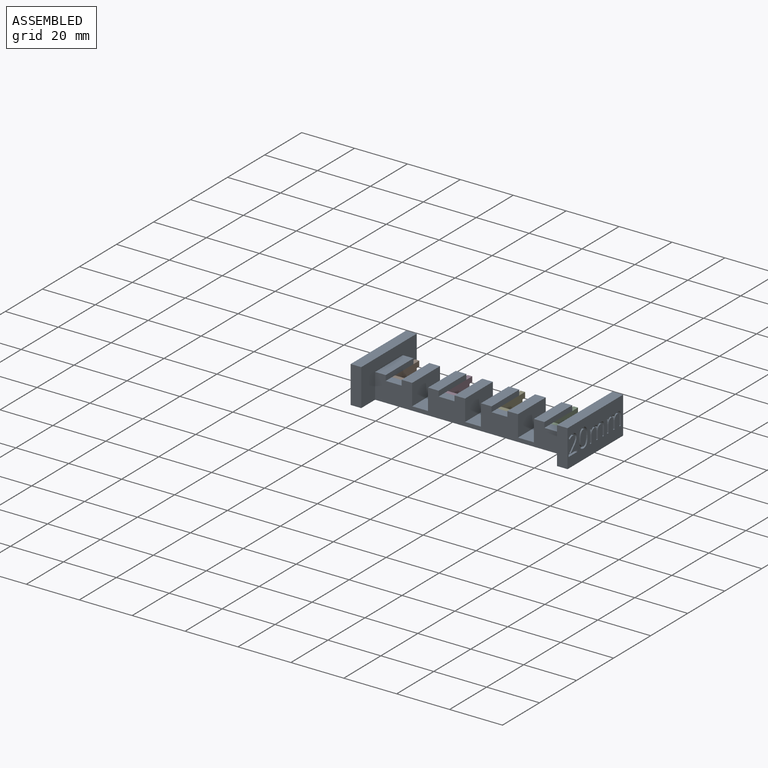
[diagram: assembled view]
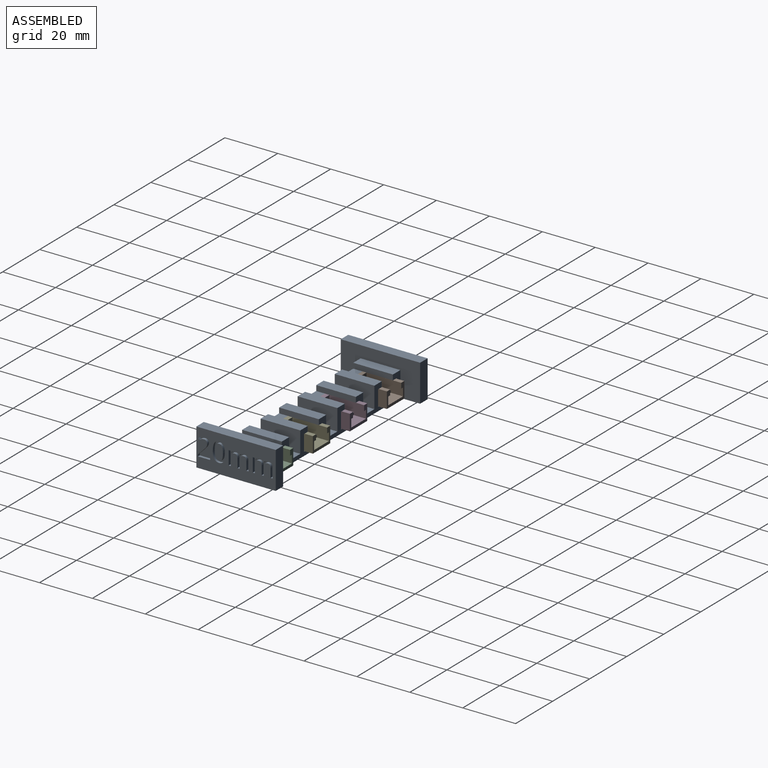
[diagram: assembled view, second angle]
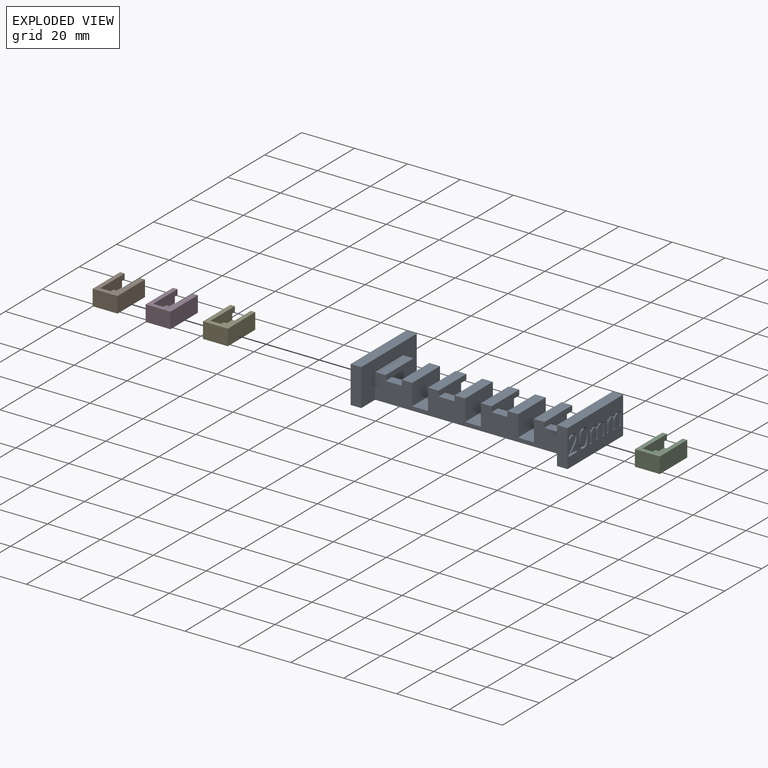
[diagram: exploded view]
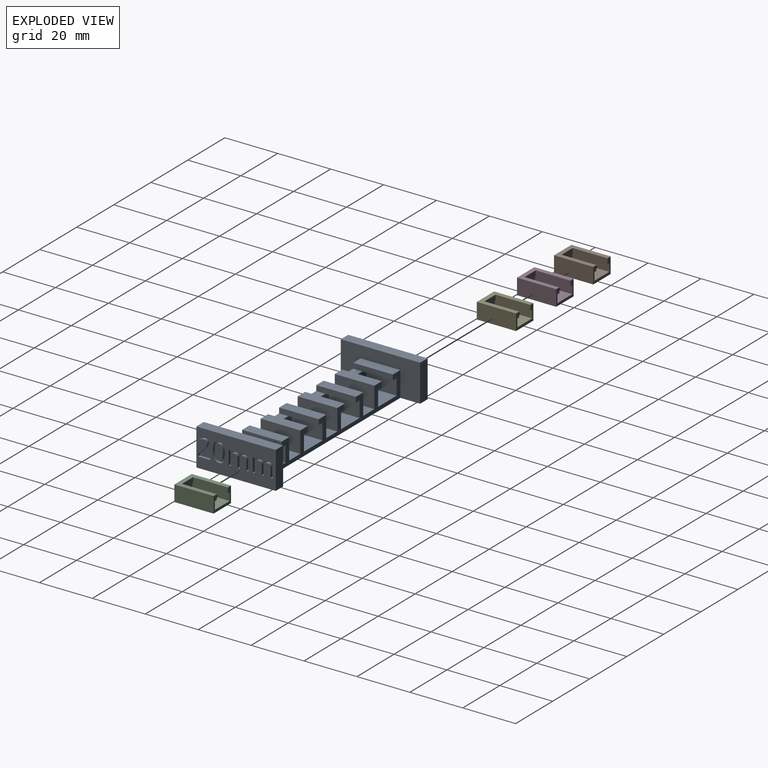
[diagram: exploded view, second angle]
ASSEMBLY  parts=5 mates=2
PART A: 167 faces, bbox 82x30x14 mm
  f0: plane 30x14mm, normal (1,0,0), area 349.8mm2, adj f18,f61,f62,f63,f77,f78,f79,f80
  f1: plane 6x3.5mm, normal (0,0,1), area 21mm2, adj f15,f33,f55,f58
  f2: plane 6x3.5mm, normal (0,0,1), area 21mm2, adj f15,f30,f50,f52
  f3: plane 6x3.5mm, normal (0,0,1), area 21mm2, adj f15,f25,f44,f46
  f4: plane 6x3.5mm, normal (0,0,1), area 21mm2, adj f15,f21,f37,f40
  f5: plane 15x6mm, normal (0,0,1), area 90mm2, adj f11,f15,f28,f35
  f6: plane 15x6mm, normal (0,0,1), area 90mm2, adj f11,f15,f23,f32
  f7: plane 11.5x10mm, normal (0,0,1), area 107.9mm2, adj f11,f13,f29,f30,f31
  f8: plane 15x6mm, normal (0,0,1), area 90mm2, adj f11,f15,f19,f27
  f9: plane 11.5x10mm, normal (0,0,1), area 107.9mm2, adj f11,f14,f24,f25,f26
  f10: plane 11.5x10mm, normal (0,0,1), area 107.9mm2, adj f11,f12,f20,f21,f22
  f11: plane 74x9.5mm, normal (0,1,0), area 271mm2, adj f5,f6,f7,f8,f9,f10,f17,f18
  f12: cylinder r=1.5mm len=3mm, axis (0,0,-1), area 14.1mm2, adj f10,f18
  f13: cylinder r=1.5mm len=3mm, axis (0,0,-1), area 14.1mm2, adj f7,f18
  f14: cylinder r=1.5mm len=3mm, axis (0,0,-1), area 14.1mm2, adj f9,f18
  f15: plane 74x9.5mm, normal (0,-1,0), area 511mm2, adj f1,f2,f3,f4,f5,f6,f8,f18
  f16: cylinder r=1.5mm len=3mm, axis (0,0,-1), area 14.1mm2, adj f17,f18
  f17: plane 11.5x10mm, normal (0,0,1), area 107.9mm2, adj f11,f16,f33,f34,f36
  f18: plane 82x30mm, normal (0,0,-1), area 1321.7mm2, adj f0,f11,f12,f13,f14,f15,f16,f61
  f19: plane 15x8mm, normal (1,0,0), area 120mm2, adj f8,f11,f15,f41
  f20: plane 11.5x6mm, normal (-1,0,0), area 69mm2, adj f10,f11,f21,f42
  f21: plane 10x6mm, normal (0,1,0), area 60mm2, adj f4,f10,f20,f22,f39,f42
  f22: plane 11.5x6mm, normal (1,0,0), area 69mm2, adj f10,f11,f21,f39
  f23: plane 15x8mm, normal (1,0,0), area 120mm2, adj f6,f11,f15,f45
  f24: plane 11.5x6mm, normal (-1,0,0), area 69mm2, adj f9,f11,f25,f43
  f25: plane 10x6mm, normal (0,1,0), area 60mm2, adj f3,f9,f24,f26,f43,f48
  f26: plane 11.5x6mm, normal (1,0,0), area 69mm2, adj f9,f11,f25,f48
  f27: plane 15x8mm, normal (-1,0,0), area 120mm2, adj f8,f11,f15,f47
  f28: plane 15x8mm, normal (1,0,0), area 120mm2, adj f5,f11,f15,f51
  f29: plane 11.5x6mm, normal (-1,0,0), area 69mm2, adj f7,f11,f30,f49
  f30: plane 10x6mm, normal (0,1,0), area 60mm2, adj f2,f7,f29,f31,f49,f54
  f31: plane 11.5x6mm, normal (1,0,0), area 69mm2, adj f7,f11,f30,f54
  f32: plane 15x8mm, normal (-1,0,0), area 120mm2, adj f6,f11,f15,f53
  f33: plane 10x6mm, normal (0,1,0), area 60mm2, adj f1,f17,f34,f36,f57,f60
  f34: plane 11.5x6mm, normal (1,0,0), area 69mm2, adj f11,f17,f33,f60
  f35: plane 15x8mm, normal (-1,0,0), area 120mm2, adj f5,f11,f15,f59
  f36: plane 11.5x6mm, normal (-1,0,0), area 69mm2, adj f11,f17,f33,f57
  f37: plane 15x2mm, normal (1,0,0), area 30mm2, adj f4,f11,f15,f38,f39
  f38: plane 15x4mm, normal (0,0,1), area 60mm2, adj f11,f15,f37,f69
  f39: plane 11.5x2mm, normal (0,0,-1), area 23mm2, adj f11,f21,f22,f37
  f40: plane 15x2mm, normal (-1,0,0), area 30mm2, adj f4,f11,f15,f41,f42
  f41: plane 15x4mm, normal (0,0,1), area 60mm2, adj f11,f15,f19,f40
  f42: plane 11.5x2mm, normal (0,0,-1), area 23mm2, adj f11,f20,f21,f40
  f43: plane 11.5x2mm, normal (0,0,-1), area 23mm2, adj f11,f24,f25,f44
  f44: plane 15x2mm, normal (-1,0,0), area 30mm2, adj f3,f11,f15,f43,f45
  f45: plane 15x4mm, normal (0,0,1), area 60mm2, adj f11,f15,f23,f44
  f46: plane 15x2mm, normal (1,0,0), area 30mm2, adj f3,f11,f15,f47,f48
  f47: plane 15x4mm, normal (0,0,1), area 60mm2, adj f11,f15,f27,f46
  f48: plane 11.5x2mm, normal (0,0,-1), area 23mm2, adj f11,f25,f26,f46
  f49: plane 11.5x2mm, normal (0,0,-1), area 23mm2, adj f11,f29,f30,f50
  f50: plane 15x2mm, normal (-1,0,0), area 30mm2, adj f2,f11,f15,f49,f51
  f51: plane 15x4mm, normal (0,0,1), area 60mm2, adj f11,f15,f28,f50
  f52: plane 15x2mm, normal (1,0,0), area 30mm2, adj f2,f11,f15,f53,f54
  f53: plane 15x4mm, normal (0,0,1), area 60mm2, adj f11,f15,f32,f52
  f54: plane 11.5x2mm, normal (0,0,-1), area 23mm2, adj f11,f30,f31,f52
  f55: plane 15x2mm, normal (-1,0,0), area 30mm2, adj f1,f11,f15,f56,f57
  f56: plane 15x4mm, normal (0,0,1), area 60mm2, adj f11,f15,f55,f64
  f57: plane 11.5x2mm, normal (0,0,-1), area 23mm2, adj f11,f33,f36,f55
  f58: plane 15x2mm, normal (1,0,0), area 30mm2, adj f1,f11,f15,f59,f60
  f59: plane 15x4mm, normal (0,0,1), area 60mm2, adj f11,f15,f35,f58
  f60: plane 11.5x2mm, normal (0,0,-1), area 23mm2, adj f11,f33,f34,f58
  f61: plane 14x4mm, normal (0,1,0), area 56mm2, adj f0,f18,f62,f64
  f62: plane 30x4mm, normal (0,0,1), area 120mm2, adj f0,f61,f63,f64
  f63: plane 14x4mm, normal (0,-1,0), area 56mm2, adj f0,f18,f62,f64
  f64: plane 30x14mm, normal (-1,0,0), area 277.5mm2, adj f11,f15,f18,f56,f61,f62,f63
  f65: plane 14x4mm, normal (0,-1,0), area 56mm2, adj f18,f66,f68,f69
  f66: plane 30x4mm, normal (0,0,1), area 120mm2, adj f65,f67,f68,f69
  f67: plane 14x4mm, normal (0,1,0), area 56mm2, adj f18,f66,f68,f69
  f68: plane 30x14mm, normal (-1,0,0), area 420mm2, adj f18,f65,f66,f67
  f69: plane 30x14mm, normal (1,0,0), area 277.5mm2, adj f11,f15,f18,f38,f65,f66,f67
  f70: extruded ~2.23x1mm, area 2.3mm2, adj f71,f85,f86,f166
  f71: extruded ~2.23x1mm, area 2.3mm2, adj f70,f72,f86,f166
  f72: extruded ~1.15x1mm, area 1.4mm2, adj f71,f73,f86,f166
  f73: extruded ~1.16x1mm, area 1.4mm2, adj f72,f74,f86,f166
  f74: extruded ~2.22x1mm, area 2.3mm2, adj f73,f75,f86,f166
  f75: extruded ~2.22x1mm, area 2.3mm2, adj f74,f76,f86,f166
  f76: extruded ~1.16x1mm, area 1.4mm2, adj f75,f85,f86,f166
  f77: extruded ~2.72x1mm, area 2.8mm2, adj f0,f78,f84,f86
  f78: extruded ~2.68x1mm, area 2.8mm2, adj f0,f77,f79,f86
  f79: extruded ~1.74x1mm, area 2.1mm2, adj f0,f78,f80,f86
  f80: extruded ~1.74x1mm, area 2mm2, adj f0,f79,f81,f86
  f81: extruded ~2.72x1mm, area 2.8mm2, adj f0,f80,f82,f86
  f82: extruded ~2.7x1mm, area 2.8mm2, adj f0,f81,f83,f86
  f83: extruded ~1.72x1mm, area 2mm2, adj f0,f82,f84,f86
  f84: extruded ~1.76x1mm, area 2.1mm2, adj f0,f77,f83,f86
  f85: extruded ~1.15x1mm, area 1.4mm2, adj f70,f76,f86,f166
  f86: plane 7.23x4.64mm, normal (1,0,0), area 13mm2, adj f70,f71,f72,f73,f74,f75,f76,f77
  f87: plane 3.42x1mm, normal (0,1,0), area 3.4mm2, adj f0,f88,f114,f115
  f88: plane 1x0.8mm, normal (0,0,1), area 0.8mm2, adj f0,f87,f89,f115
  f89: plane 3.43x1mm, normal (0,-1,0), area 3.4mm2, adj f0,f88,f90,f115
  f90: extruded ~1.47x1mm, area 1.6mm2, adj f0,f89,f91,f115
  f91: extruded ~1.34x1mm, area 1.5mm2, adj f0,f90,f92,f115
  f92: extruded ~1.02x1mm, area 1.1mm2, adj f0,f91,f93,f115
  f93: extruded ~1x0.68mm, area 1mm2, adj f0,f92,f94,f115
  f94: plane 1x0.04mm, normal (0,0,-1), area 0mm2, adj f0,f93,f95,f115
  f95: extruded ~1.61x1mm, area 2mm2, adj f0,f94,f96,f115
  f96: extruded ~1x0.92mm, area 1mm2, adj f0,f95,f97,f115
  f97: extruded ~1x0.64mm, area 0.9mm2, adj f0,f96,f98,f115
  f98: plane 1x0.04mm, normal (0,0,-1), area 0mm2, adj f0,f97,f99,f115
  f99: plane 1x0.72mm, normal (0,-0.98,-0.18), area 0.7mm2, adj f0,f98,f100,f115
  f100: plane 1x0.65mm, normal (0,0,-1), area 0.6mm2, adj f0,f99,f101,f115
  f101: plane 5.26x1mm, normal (0,1,0), area 5.3mm2, adj f0,f100,f102,f115
  f102: plane 1x0.8mm, normal (0,0,1), area 0.8mm2, adj f0,f101,f103,f115
  f103: plane 2.76x1mm, normal (0,-1,0), area 2.8mm2, adj f0,f102,f104,f115
  f104: extruded ~1.47x1mm, area 1.5mm2, adj f0,f103,f105,f115
  f105: extruded ~1.1x1mm, area 1.2mm2, adj f0,f104,f106,f115
  f106: extruded ~1x0.84mm, area 0.9mm2, adj f0,f105,f107,f115
  f107: extruded ~1x0.94mm, area 1mm2, adj f0,f106,f108,f115
  f108: plane 3.42x1mm, normal (0,1,0), area 3.4mm2, adj f0,f107,f109,f115
  f109: plane 1x0.8mm, normal (0,0,1), area 0.8mm2, adj f0,f108,f110,f115
  f110: plane 2.94x1mm, normal (0,-1,0), area 2.9mm2, adj f0,f109,f111,f115
  f111: extruded ~1.32x1mm, area 1.4mm2, adj f0,f110,f112,f115
  f112: extruded ~1.1x1mm, area 1.2mm2, adj f0,f111,f113,f115
  f113: extruded ~1x0.84mm, area 0.9mm2, adj f0,f112,f114,f115
  f114: extruded ~1x0.94mm, area 1mm2, adj f0,f87,f113,f115
  f115: plane 7.51x5.36mm, normal (1,0,0), area 15.7mm2, adj f87,f88,f89,f90,f91,f92,f93,f94
  f116: plane 3.42x1mm, normal (0,1,0), area 3.4mm2, adj f0,f117,f143,f144
  f117: plane 1x0.8mm, normal (0,0,1), area 0.8mm2, adj f0,f116,f118,f144
  f118: plane 3.43x1mm, normal (0,-1,0), area 3.4mm2, adj f0,f117,f119,f144
  f119: extruded ~1.47x1mm, area 1.6mm2, adj f0,f118,f120,f144
  f120: extruded ~1.34x1mm, area 1.5mm2, adj f0,f119,f121,f144
  f121: extruded ~1.02x1mm, area 1.1mm2, adj f0,f120,f122,f144
  f122: extruded ~1x0.68mm, area 1mm2, adj f0,f121,f123,f144
  f123: plane 1x0.04mm, normal (0,0,-1), area 0mm2, adj f0,f122,f124,f144
  f124: extruded ~1.61x1mm, area 2mm2, adj f0,f123,f125,f144
  f125: extruded ~1x0.92mm, area 1mm2, adj f0,f124,f126,f144
  f126: extruded ~1x0.64mm, area 0.9mm2, adj f0,f125,f127,f144
  f127: plane 1x0.04mm, normal (0,0,-1), area 0mm2, adj f0,f126,f128,f144
  f128: plane 1x0.72mm, normal (0,-0.98,-0.18), area 0.7mm2, adj f0,f127,f129,f144
  f129: plane 1x0.65mm, normal (0,0,-1), area 0.6mm2, adj f0,f128,f130,f144
  f130: plane 5.26x1mm, normal (0,1,0), area 5.3mm2, adj f0,f129,f131,f144
  f131: plane 1x0.8mm, normal (0,0,1), area 0.8mm2, adj f0,f130,f132,f144
  f132: plane 2.76x1mm, normal (0,-1,0), area 2.8mm2, adj f0,f131,f133,f144
  f133: extruded ~1.47x1mm, area 1.5mm2, adj f0,f132,f134,f144
  f134: extruded ~1.1x1mm, area 1.2mm2, adj f0,f133,f135,f144
  f135: extruded ~1x0.84mm, area 0.9mm2, adj f0,f134,f136,f144
  f136: extruded ~1x0.94mm, area 1mm2, adj f0,f135,f137,f144
  f137: plane 3.42x1mm, normal (0,1,0), area 3.4mm2, adj f0,f136,f138,f144
  f138: plane 1x0.8mm, normal (0,0,1), area 0.8mm2, adj f0,f137,f139,f144
  f139: plane 2.94x1mm, normal (0,-1,0), area 2.9mm2, adj f0,f138,f140,f144
  f140: extruded ~1.32x1mm, area 1.4mm2, adj f0,f139,f141,f144
  f141: extruded ~1.1x1mm, area 1.2mm2, adj f0,f140,f142,f144
  f142: extruded ~1x0.84mm, area 0.9mm2, adj f0,f141,f143,f144
  f143: extruded ~1x0.94mm, area 1mm2, adj f0,f116,f142,f144
  f144: plane 7.51x5.36mm, normal (1,0,0), area 15.7mm2, adj f116,f117,f118,f119,f120,f121,f122,f123
  f145: plane 4.62x1mm, normal (0,0,1), area 4.6mm2, adj f0,f146,f164,f165
  f146: plane 1x0.74mm, normal (0,-1,0), area 0.7mm2, adj f0,f145,f147,f165
  f147: plane 3.61x1mm, normal (0,0,-1), area 3.6mm2, adj f0,f146,f148,f165
  f148: plane 1x0.04mm, normal (0,-1,0), area 0mm2, adj f0,f147,f149,f165
  f149: plane 1.54x1.5mm, normal (0,-0.7,0.71), area 2.1mm2, adj f0,f148,f150,f165
  f150: extruded ~1.65x1.4mm, area 2.2mm2, adj f0,f149,f151,f165
  f151: extruded ~1.32x1mm, area 1.4mm2, adj f0,f150,f152,f165
  f152: extruded ~1.36x1mm, area 1.5mm2, adj f0,f151,f153,f165
  f153: extruded ~1.55x1mm, area 1.7mm2, adj f0,f152,f154,f165
  f154: extruded ~2.11x1mm, area 2.3mm2, adj f0,f153,f155,f165
  f155: plane 1x0.54mm, normal (0,0.79,0.61), area 0.7mm2, adj f0,f154,f156,f165
  f156: extruded ~1x0.87mm, area 1mm2, adj f0,f155,f157,f165
  f157: extruded ~1x0.83mm, area 0.8mm2, adj f0,f156,f158,f165
  f158: extruded ~1x0.95mm, area 1mm2, adj f0,f157,f159,f165
  f159: extruded ~1x0.89mm, area 1mm2, adj f0,f158,f160,f165
  f160: extruded ~1x0.74mm, area 0.8mm2, adj f0,f159,f161,f165
  f161: extruded ~1x0.71mm, area 0.8mm2, adj f0,f160,f162,f165
  f162: extruded ~1.22x1.11mm, area 1.7mm2, adj f0,f161,f163,f165
  f163: plane 1.86x1.85mm, normal (0,0.71,-0.71), area 2.6mm2, adj f0,f162,f164,f165
  f164: plane 1x0.69mm, normal (0,1,0), area 0.7mm2, adj f0,f145,f163,f165
  f165: plane 7.12x4.62mm, normal (1,0,0), area 10.9mm2, adj f145,f146,f147,f148,f149,f150,f151,f152
  f166: plane 5.85x3.02mm, normal (1,0,0), area 14.9mm2, adj f70,f71,f72,f73,f74,f75,f76,f85
PART B: 22 faces, bbox 9.4x6x14.8 mm
  f0: plane 9.4x6mm, normal (0,0,1), area 20.4mm2, adj f1,f3,f5,f6,f8,f9,f10,f16
  f1: plane 14.83x9.4mm, normal (0,1,0), area 132.4mm2, adj f0,f17,f18,f19,f21
  f2: plane 9.5x8mm, normal (0,-1,0), area 60mm2, adj f3,f4,f5,f11,f12,f13,f14,f15
  f3: plane 14.13x3mm, normal (-1,0,0), area 32.9mm2, adj f0,f2,f4,f10,f15,f16
  f4: plane 8x2mm, normal (0,0,1), area 16mm2, adj f2,f3,f5,f10
  f5: plane 14.13x3mm, normal (1,0,0), area 32.9mm2, adj f0,f2,f4,f10,f15,f16
  f6: plane 13.13x2mm, normal (-1,0,0), area 26.3mm2, adj f0,f7,f9,f10
  f7: plane 6x2mm, normal (0,0,1), area 12mm2, adj f6,f8,f9,f10
  f8: plane 13.13x2mm, normal (1,0,0), area 26.3mm2, adj f0,f7,f9,f10
  f9: plane 14.83x9.4mm, normal (0,-1,0), area 60.6mm2, adj f0,f6,f7,f8,f17,f18,f19
  f10: plane 14.13x8mm, normal (0,1,0), area 34.3mm2, adj f0,f3,f4,f5,f6,f7,f8
  f11: plane 5x0.8mm, normal (1,0,0), area 4mm2, adj f2,f12,f14,f20
  f12: plane 3.19x0.8mm, normal (0,0,1), area 2.6mm2, adj f2,f11,f13,f20
  f13: plane 5x0.8mm, normal (-1,0,0), area 4mm2, adj f2,f12,f14,f20
  f14: plane 3.19x0.8mm, normal (0,0,-1), area 2.6mm2, adj f2,f11,f13,f20
  f15: plane 8x1mm, normal (0,0,1), area 8mm2, adj f2,f3,f5,f16
  f16: plane 8x4.63mm, normal (0,-1,0), area 37.1mm2, adj f0,f3,f5,f15
  f17: plane 14.83x6mm, normal (1,0,0), area 89mm2, adj f0,f1,f9,f19
  f18: plane 14.83x6mm, normal (-1,0,0), area 89mm2, adj f0,f1,f9,f19
  f19: plane 9.4x6mm, normal (0,0,-1), area 56.4mm2, adj f1,f9,f17,f18
  f20: plane 5x3.19mm, normal (0,-1,0), area 8.9mm2, adj f11,f12,f13,f14,f21
  f21: cylinder r=1.5mm len=3mm, axis (0,1,0), area 11.3mm2, adj f1,f20
PART C: same geometry as B
PART D: same geometry as B
PART E: same geometry as B
PLACE A t=(1.87,0.29,-8.18)mm fixed
PLACE B rot(axis=(-1,0,0),90deg) t=(-28.13,4.29,-6.68)mm
PLACE C rot(axis=(-1,0,0),90deg) t=(31.87,4.29,-6.68)mm
PLACE D rot(axis=(-1,0,0),90deg) t=(-8.13,4.29,-6.68)mm
PLACE E rot(axis=(-1,0,0),90deg) t=(11.87,4.29,-6.68)mm
MATE planar B.f1 <-> A.f9  axis (0,0,-1) through (-28.13,3.68,-6.68)mm
MATE slider B.f21 <-> A.f12  axis (0,0,-1) through (-28.13,0.29,-5.48)mm
